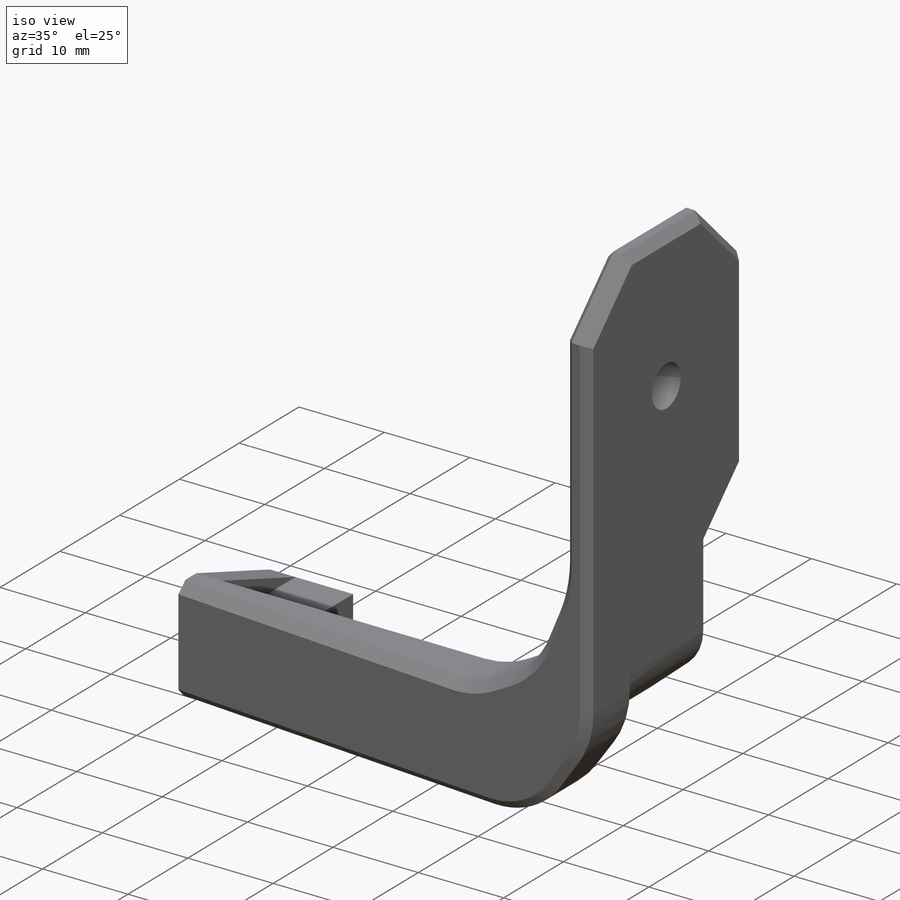
[diagram: iso view]
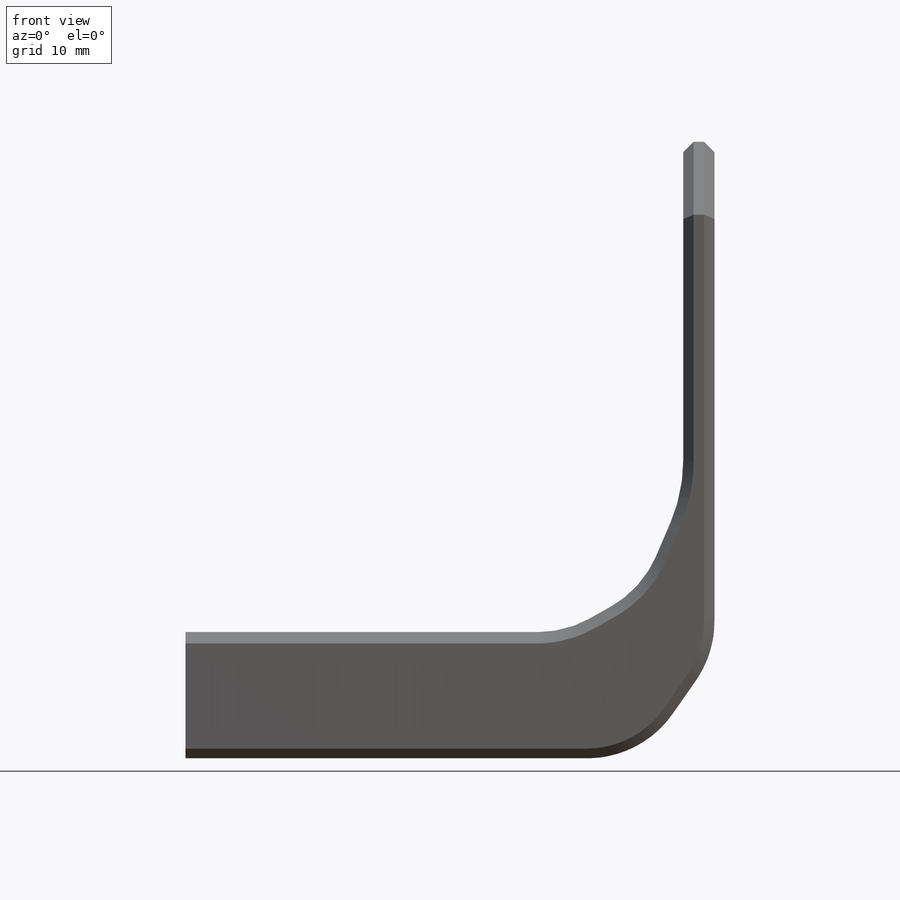
[diagram: front view]
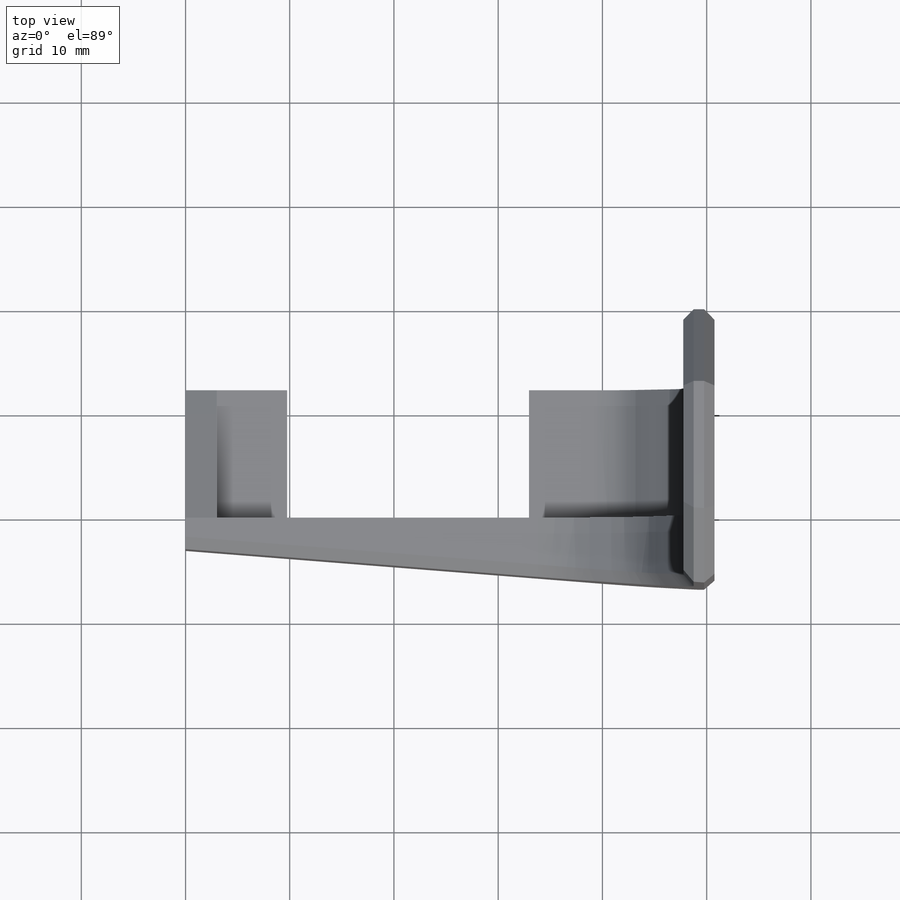
[diagram: top view]
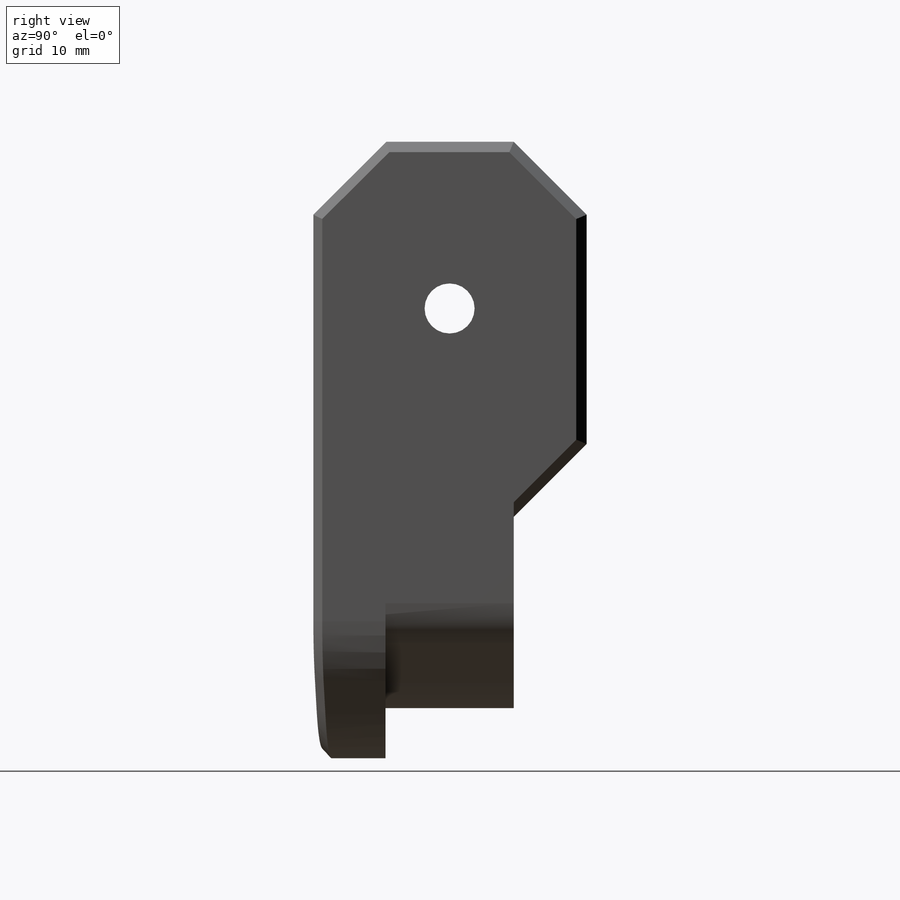
[diagram: right view]
SOLIDWORKS PART (.sldprt)
format: sldprt  version: not decoded by parser v0  size: 449,024 bytes
history: native  units: mm
features: sketch x10, extrude x5, cut_extrude x5, chamfer x3, fillet x3, material x1, plane x1 (+13 scaffold rows collapsed)
feature tree (41):
  scaffold x13  (default folders/planes/origin — collapsed)
  material  "Material <not specified>"
  sketch  "Sketch2"  dims[c1.D1=10.0mm c1.D2=5.0mm c1.D3=3.0mm c1.D4=~63.444804mm c2.D3=3.0mm c2.D4=10.0mm c2.D5=7.0mm c2.D6=16.0mm]
  extrude  "Boss-Extrude2"  Depth=7mm
  sketch  "Sketch3"  dims[D1=3.0mm D2=7.0mm]
  cut_extrude  "Cut-Extrude1"  [1 undecoded]
  sketch  "Sketch5"  dims[c1.D1=~0.353553mm c1.D2=4.0mm c1.D3=3.0mm c1.D4=3.0mm c1.D5=3.0mm c2.D1=0.0mm]
  extrude  "Boss-Extrude3"  [1 undecoded]
  sketch  "Sketch6"  dims[D1=12.0mm]
  extrude  "Boss-Extrude4"  Depth=12mm
  chamfer  "Chamfer1"  Distance=12mm Angle=45deg
  chamfer  "Chamfer2"  Distance=7mm Angle=45deg
  fillet  "Fillet1"  Radius=10mm
  fillet  "Fillet2"  Radius=5mm
  plane  "Plane1"
  sketch  "Sketch10"  dims[D1=47.75mm]
  cut_extrude  "Cut-Extrude2"  [1 undecoded]
  sketch  "Sketch11"  dims[c1.D1=15.0mm c1.D2=10.0mm c2.D1=~6.248533mm c2.D2=~0.79035mm c2.D3=~13.913753mm]
  extrude  "Boss-Extrude5"  [1 undecoded]
  fillet  "Fillet3"  Radius=5mm
  sketch  "Sketch13"  dims[D1=4.55mm]
  extrude  "Boss-Extrude6"  Depth=3mm
  chamfer  "Chamfer3"  Distance=1mm Angle=45deg
  sketch  "Sketch14"  dims[D1=4.8mm]
  cut_extrude  "Cut-Extrude3"  [1 undecoded]
  sketch  "Sketch16"  dims[D1=2.2mm]
  cut_extrude  "Cut-Extrude4"  [1 undecoded]
  sketch  "Sketch17"
  cut_extrude  "Cut-Extrude5"  [1 undecoded]
decode coverage: 18 of 26 modeling features carry decoded parameters
note: ~ marks probable driven/reference dimensions
note: 7 parameter values undecoded
summary: no parameter record found for 7 features
note: suppression state not decoded; provenance and decode notes live in map.json
